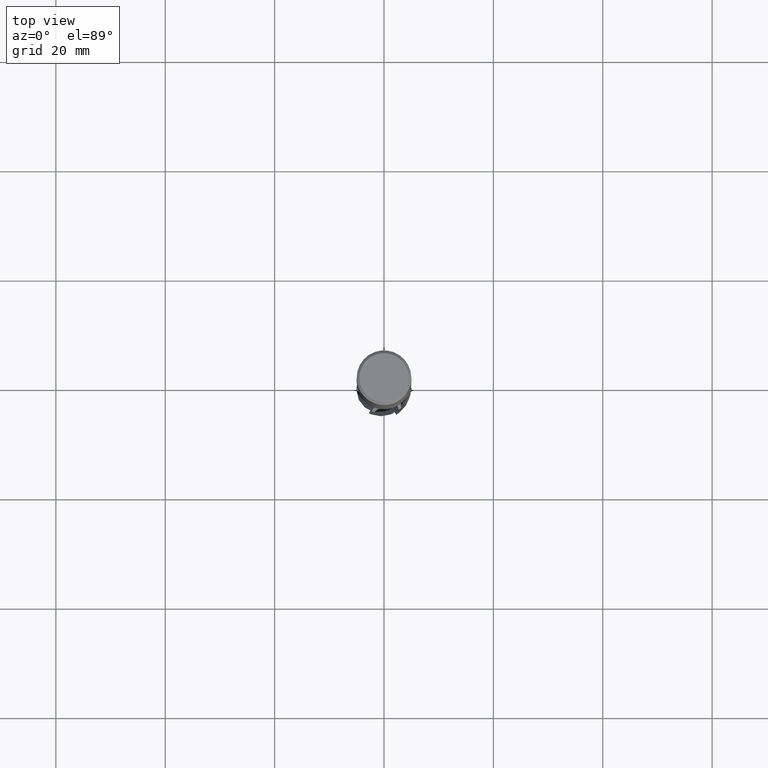
[diagram: clean part render]
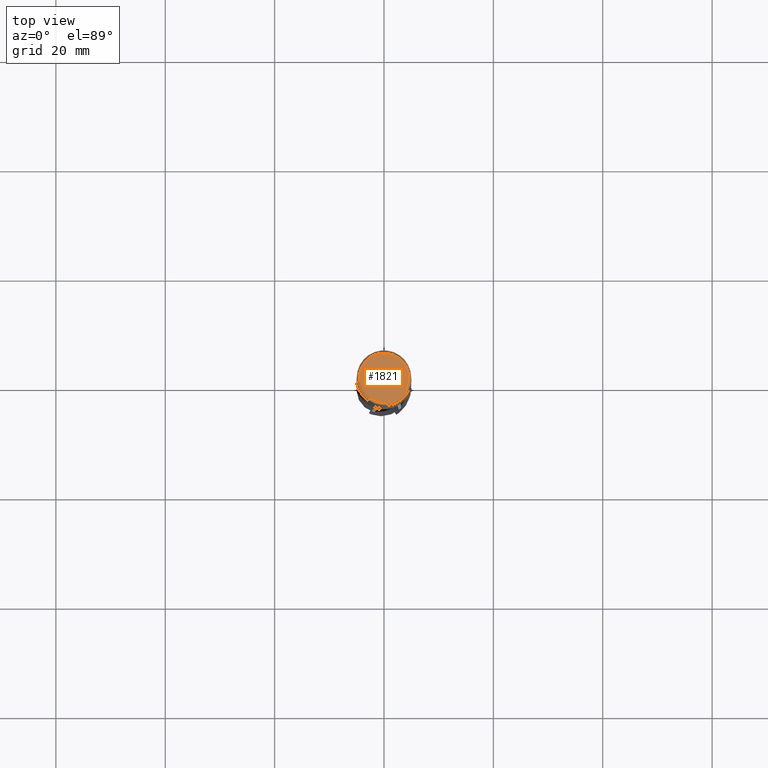
[diagram: same view with one face highlighted and labeled with its STEP entity id]
A machine part, top view. The second image highlights one B-rep face of the part: STEP entity #1821.
In plain terms, the highlighted planar face has unit normal (-0, 0, 1).
Its self-contained STEP definition (entity closure, byte-faithful):
#1781 = VERTEX_POINT('', #1782);
#1782 = CARTESIAN_POINT('', (-4.5, 2.75545529808154E-16, 0.));
#1788 = EDGE_CURVE('', #1781, #1781, #1789, .T.);
#1789 = CIRCLE('', #1790, 4.5);
#1790 = AXIS2_PLACEMENT_3D('', #1791, #1792, #1793);
#1791 = CARTESIAN_POINT('', (-1.34940133673351E-79, 8.26270013897925E-96, 0.));
#1792 = DIRECTION('', (3.74939945665464E-33, 6.12323399573677E-17, -1.));
#1793 = DIRECTION('', (-1., 6.12323399573677E-17, 0.));
#1821 = ADVANCED_FACE('', (#1822), #1825, .T.);
#1822 = FACE_OUTER_BOUND('', #1823, .T.);
#1823 = EDGE_LOOP('', (#1824));
#1824 = ORIENTED_EDGE('', *, *, #1788, .F.);
#1825 = PLANE('', #1826);
#1826 = AXIS2_PLACEMENT_3D('', #1827, #1828, #1829);
#1827 = CARTESIAN_POINT('', (7.00035713374682, -7.00035713374682, 2.1678253570431E-14));
#1828 = DIRECTION('', (-1.57898385724467E-15, 1.5177515172873E-15, 1.));
#1829 = DIRECTION('', (0., 1., -1.5177515172873E-15));